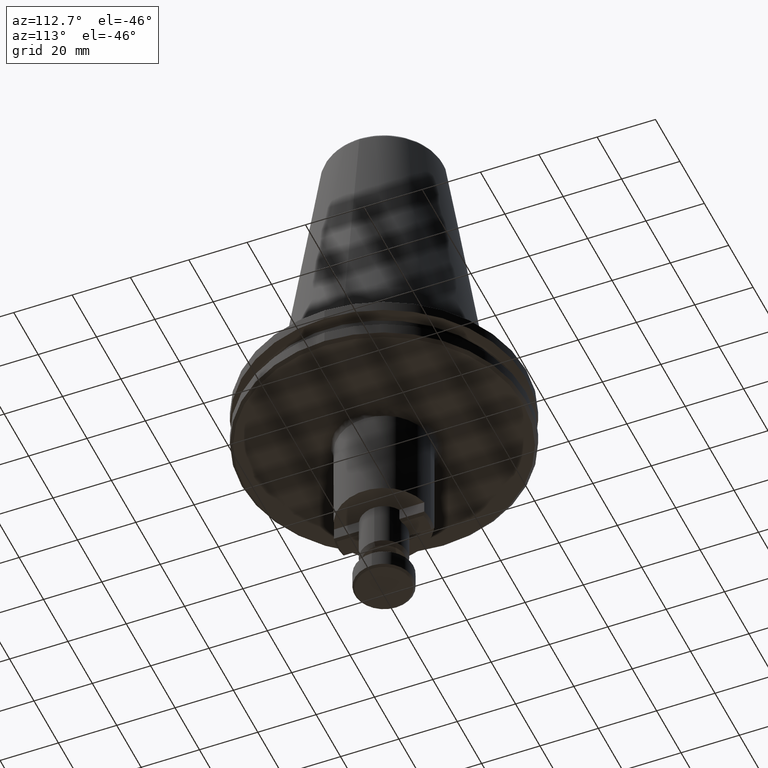
[diagram: clean part render]
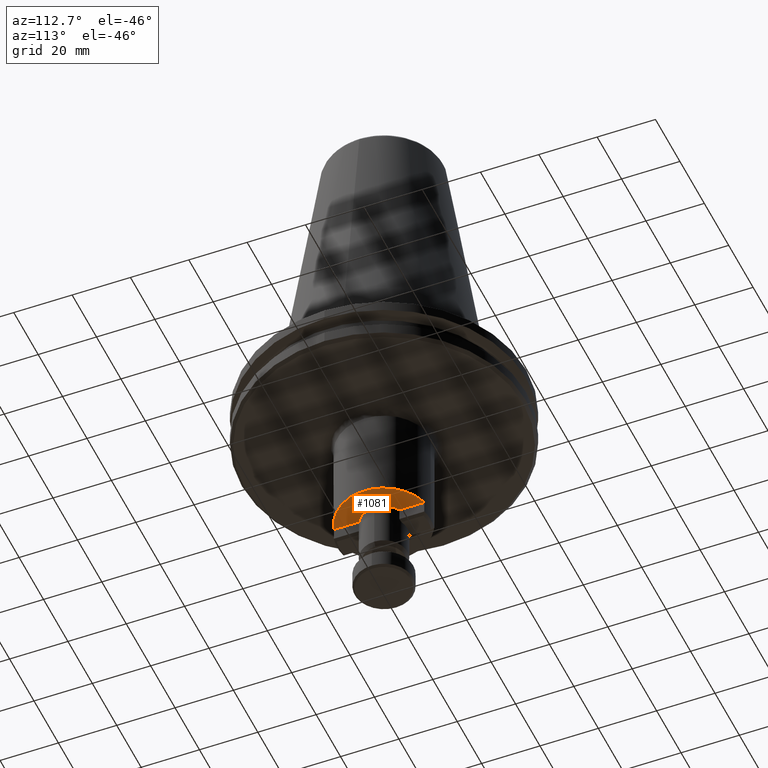
[diagram: same view with one face highlighted and labeled with its STEP entity id]
A machine part, auxiliary view. The second image highlights one B-rep face of the part: STEP entity #1081.
In plain terms, the highlighted planar face has unit normal (0, 0, -1).
Its self-contained STEP definition (entity closure, byte-faithful):
#40 = DIRECTION ( 'NONE',  ( -1.000000000000000000, 0.0000000000000000000, -0.0000000000000000000 ) ) ;
#44 = DIRECTION ( 'NONE',  ( 0.0000000000000000000, 0.0000000000000000000, -1.000000000000000000 ) ) ;
#49 = PLANE ( 'NONE',  #1955 ) ;
#51 = VERTEX_POINT ( 'NONE', #1160 ) ;
#57 = AXIS2_PLACEMENT_3D ( 'NONE', #1504, #852, #751 ) ;
#68 = CARTESIAN_POINT ( 'NONE',  ( -4.000000000000000000, -15.67783658500000000, -55.00000000000000000 ) ) ;
#127 = ORIENTED_EDGE ( 'NONE', *, *, #2399, .F. ) ;
#216 = CARTESIAN_POINT ( 'NONE',  ( 4.000000000000000000, 6.928203230275509700, -54.99999999940000400 ) ) ;
#386 = EDGE_CURVE ( 'NONE', #51, #1645, #2150, .T. ) ;
#390 = AXIS2_PLACEMENT_3D ( 'NONE', #526, #1944, #610 ) ;
#469 = ORIENTED_EDGE ( 'NONE', *, *, #1585, .F. ) ;
#476 = DIRECTION ( 'NONE',  ( -0.0000000000000000000, -1.000000000000000000, -0.0000000000000000000 ) ) ;
#480 = CARTESIAN_POINT ( 'NONE',  ( 4.000000000000000000, 6.928203230000002000, -54.99999999919999300 ) ) ;
#526 = CARTESIAN_POINT ( 'NONE',  ( 0.0000000000000000000, 0.0000000000000000000, -54.99999999940000400 ) ) ;
#527 = VERTEX_POINT ( 'NONE', #597 ) ;
#597 = CARTESIAN_POINT ( 'NONE',  ( 8.000000000000000000, 0.0000000000000000000, -54.99999999940000400 ) ) ;
#610 = DIRECTION ( 'NONE',  ( 1.000000000000000000, -3.552713678800500900E-015, 0.0000000000000000000 ) ) ;
#648 = EDGE_CURVE ( 'NONE', #1645, #872, #1503, .T. ) ;
#663 = LINE ( 'NONE', #2223, #688 ) ;
#688 = VECTOR ( 'NONE', #2419, 1000.000000000000000 ) ;
#751 = DIRECTION ( 'NONE',  ( 0.0000000000000000000, -1.000000000000000000, 0.0000000000000000000 ) ) ;
#852 = DIRECTION ( 'NONE',  ( 0.0000000000000000000, -2.710505431213761100E-017, 1.000000000000000000 ) ) ;
#872 = VERTEX_POINT ( 'NONE', #216 ) ;
#891 = ORIENTED_EDGE ( 'NONE', *, *, #386, .F. ) ;
#956 = CARTESIAN_POINT ( 'NONE',  ( 3.999999999989692200, 15.49193338483232900, -54.99999999919999300 ) ) ;
#1081 = ADVANCED_FACE ( 'NONE', ( #2502 ), #49, .T. ) ;
#1152 = EDGE_CURVE ( 'NONE', #872, #527, #2089, .T. ) ;
#1160 = CARTESIAN_POINT ( 'NONE',  ( 4.000000000007143600, -15.49193338483358500, -54.99999999960000000 ) ) ;
#1267 = DIRECTION ( 'NONE',  ( 0.0000000000000000000, 0.0000000000000000000, -1.000000000000000000 ) ) ;
#1290 = CARTESIAN_POINT ( 'NONE',  ( 0.0000000000000000000, 0.0000000000000000000, -54.99999999940000400 ) ) ;
#1346 = VERTEX_POINT ( 'NONE', #1951 ) ;
#1484 = AXIS2_PLACEMENT_3D ( 'NONE', #1290, #1267, #2360 ) ;
#1503 = LINE ( 'NONE', #480, #2191 ) ;
#1504 = CARTESIAN_POINT ( 'NONE',  ( 0.0000000000000000000, -1.138412281326620800E-016, -54.99999999919999300 ) ) ;
#1585 = EDGE_CURVE ( 'NONE', #1346, #51, #663, .T. ) ;
#1645 = VERTEX_POINT ( 'NONE', #956 ) ;
#1663 = CIRCLE ( 'NONE', #1484, 8.000000000000000000 ) ;
#1717 = ORIENTED_EDGE ( 'NONE', *, *, #1152, .F. ) ;
#1884 = EDGE_LOOP ( 'NONE', ( #1717, #2040, #891, #469, #127 ) ) ;
#1944 = DIRECTION ( 'NONE',  ( 0.0000000000000000000, 0.0000000000000000000, -1.000000000000000000 ) ) ;
#1951 = CARTESIAN_POINT ( 'NONE',  ( 4.000000000029462700, -6.928203230258499300, -54.99999999940000400 ) ) ;
#1955 = AXIS2_PLACEMENT_3D ( 'NONE', #68, #44, #40 ) ;
#2040 = ORIENTED_EDGE ( 'NONE', *, *, #648, .F. ) ;
#2089 = CIRCLE ( 'NONE', #390, 8.000000000000000000 ) ;
#2150 = CIRCLE ( 'NONE', #57, 16.00000000000000000 ) ;
#2191 = VECTOR ( 'NONE', #476, 1000.000000000000000 ) ;
#2223 = CARTESIAN_POINT ( 'NONE',  ( 4.000000000029462700, -15.67783658500000000, -55.00000000000000000 ) ) ;
#2360 = DIRECTION ( 'NONE',  ( 1.000000000000000000, 0.0000000000000000000, 0.0000000000000000000 ) ) ;
#2399 = EDGE_CURVE ( 'NONE', #527, #1346, #1663, .T. ) ;
#2419 = DIRECTION ( 'NONE',  ( 0.0000000000000000000, -1.000000000000000000, -0.0000000000000000000 ) ) ;
#2502 = FACE_OUTER_BOUND ( 'NONE', #1884, .T. ) ;